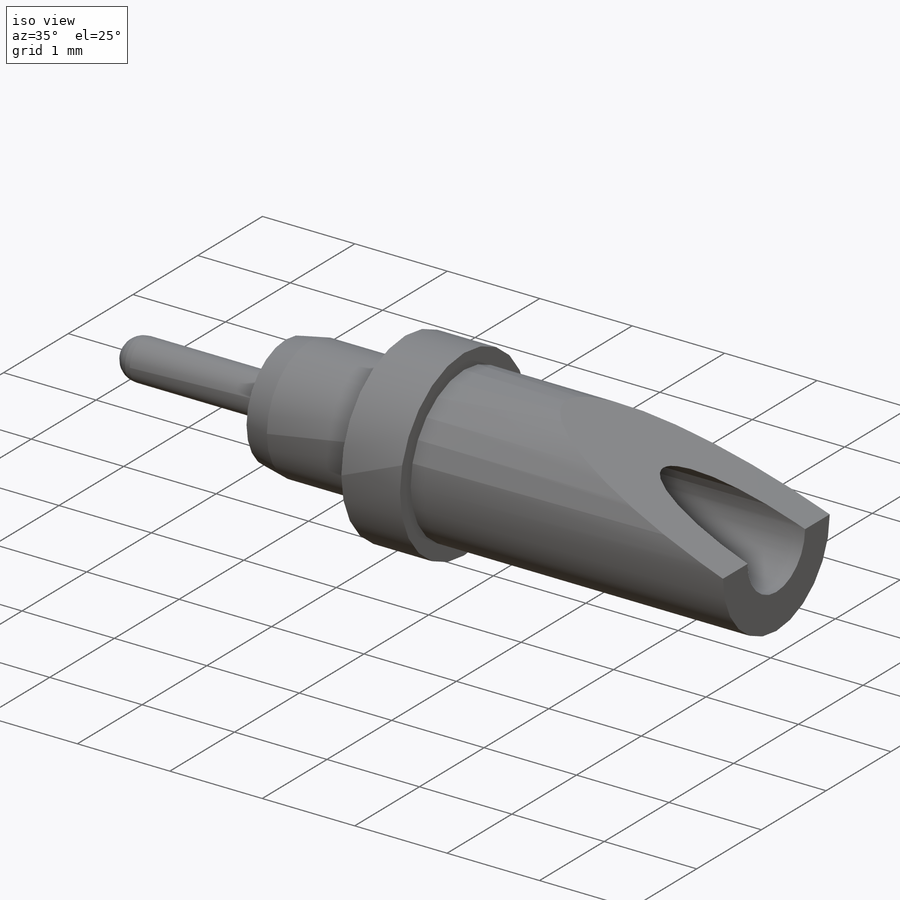
[diagram: iso view]
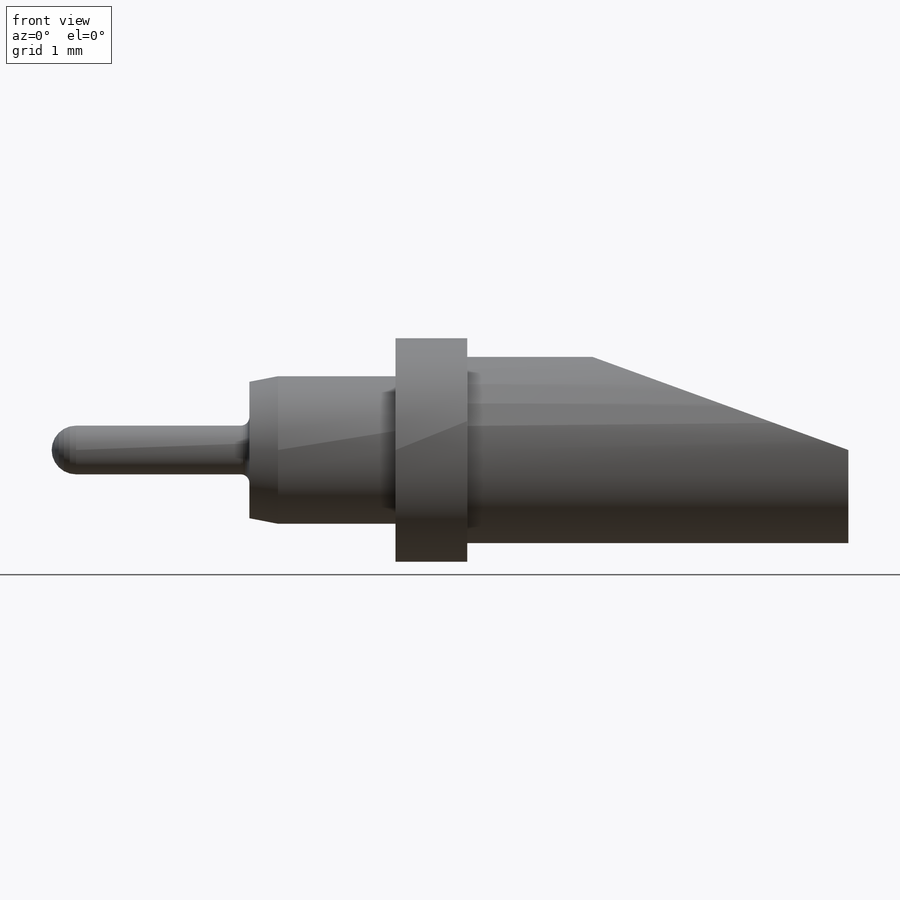
[diagram: front view]
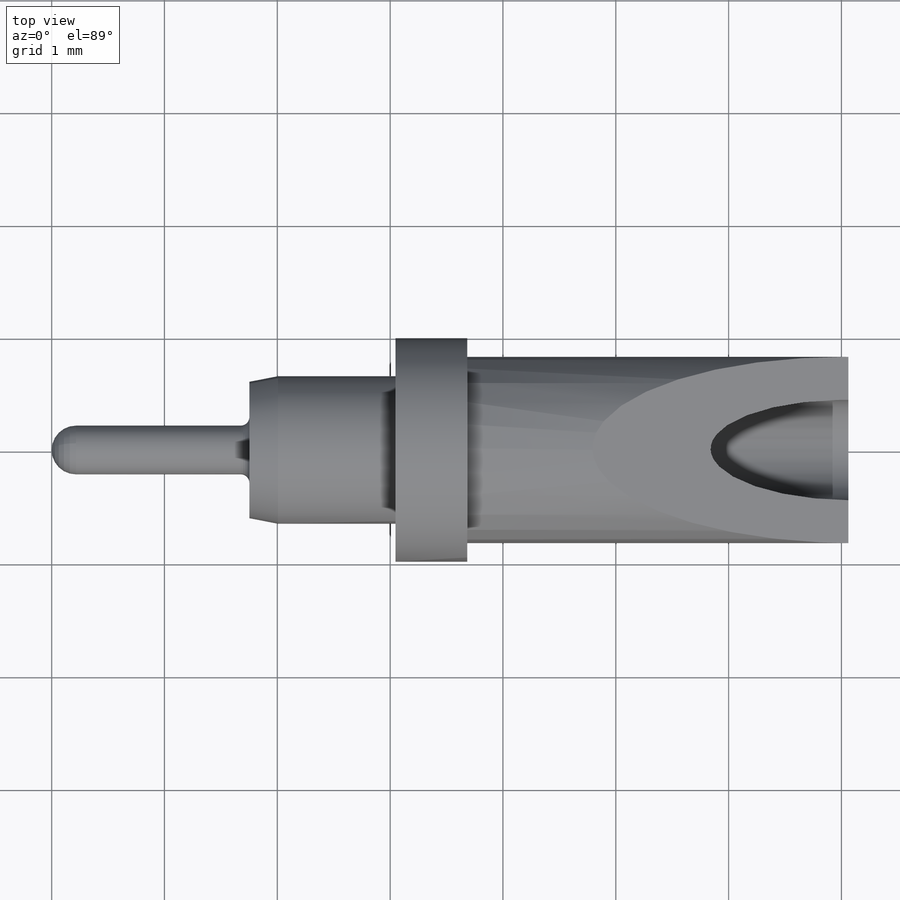
[diagram: top view]
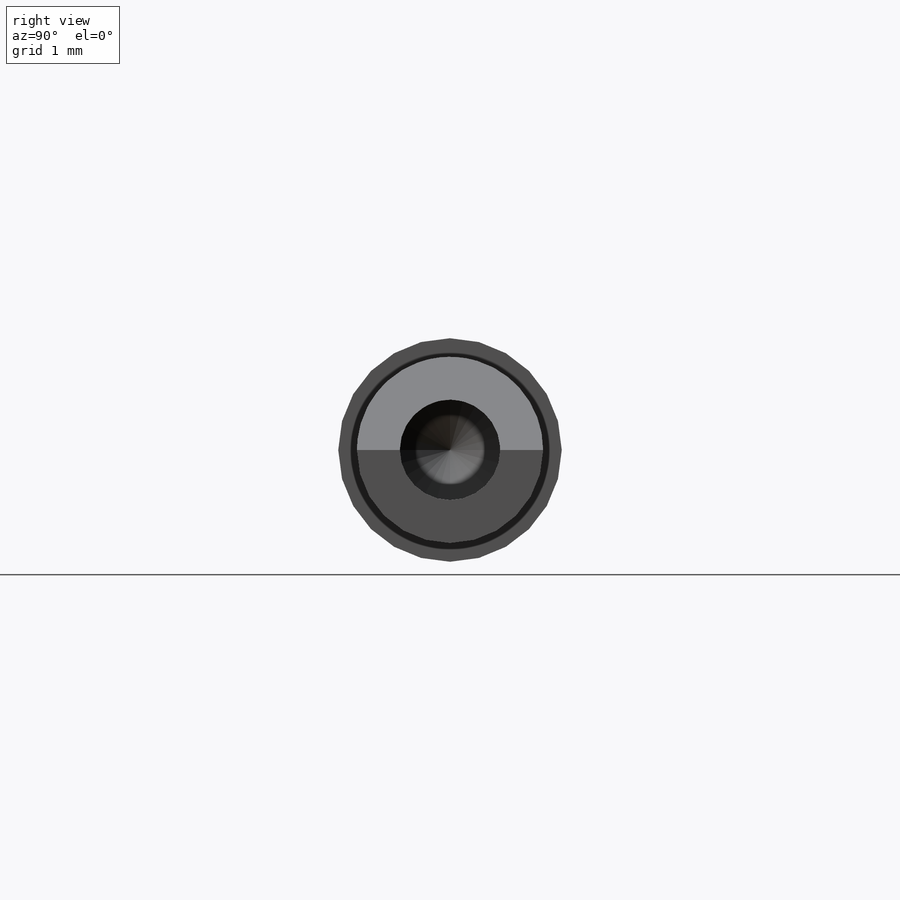
[diagram: right view]
SOLIDWORKS PART (.sldprt)
format: sldprt  version: not decoded by parser v0  size: 283,648 bytes
history: native  units: mm
features: sketch x4, material x1, revolve x1, hole x1, cut_extrude x1 (+14 scaffold rows collapsed)
feature tree (22):
  scaffold x14  (default folders/planes/origin — collapsed)
  material  "Brass Alloy 385"
  sketch  "Sketch1"  dims[c1.D5=0.2159mm c1.D9=0.0762mm c1.D13=0.2159mm c1.D14=0.0762mm c1.R1=0.2159mm c1.R2=0.0762mm c1.D1=4.0386mm c1.D2=1.7526mm c1.D3=0.5334mm c1.D4=0.2159mm c1.D6=~0.65405mm c1.D7=135.0deg c1.D8=135.0deg c1.D10=0.1016mm c1.D11=0.1016mm c1.D12=0.2159mm c2.D13=1.4605mm c2.D7=~0.143684mm c3.D7=45.0deg c3.D8=~0.143684mm c4.D8=45.0deg c4.D3=1.27mm c4.D4=0.9144mm c4.D5=4.0132mm c4.D7=0.2159mm c5.D8=0.1016mm c6.D8=45.0deg c7.D8=0.254mm c7.D9=0.0508mm c7.D11=~0.528939mm c8.D11=30.0deg c8.D12=~0.528939mm c8.D3=3.1242mm c8.D6=~0.65405mm c8.D9=0.0508mm c9.D9=~11.309932deg c9.D8=0.254mm c9.C=1.8288mm c9.L=7.1374mm c9.H=0.4318mm c9.F=1.3081mm c9.M=1.6764mm c10.M=1.7526mm c10.O=1.3716mm c10.Q=0.254mm c10.D1=~0.25903mm c10.P=11.0deg c11.D1=1.9812mm c11.D2=4.0132mm c11.K=0.635mm c11.D=1.651mm c11.C=1.9812mm c11.T=1.2954mm c11.REF=7.0612mm c11.O=3.3782mm]
  revolve  "RevolutionAngle1"  Angle=360deg
  hole  "Hole1"  [1 undecoded]
  sketch  "3DSketch1"
  sketch  "Sketch2"  dims[c1.D1=~97.659253deg c1.D2=~82.982399deg c1.A=0.889mm c2.D2=100.0mm c2.D3=~82.982399deg c2.D4=90.0deg c3.D3=~97.716715deg c3.N=4.572mm c3.Drill Angle=118.0deg]
  sketch  "Sketch3"  dims[c1.D1=~3.610454mm c2.D1=20.0deg c2.S=~2.268043mm c2.X=0.8255mm c3.X=0.8255mm c3.D1=~2.413601mm c3.P2=20.0deg]
  cut_extrude  "Cut-Extrude1"  Depth=0.889mm
decode coverage: 5 of 7 modeling features carry decoded parameters
note: ~ marks probable driven/reference dimensions
note: 1 parameter value undecoded
note: suppression state not decoded; provenance and decode notes live in map.json
